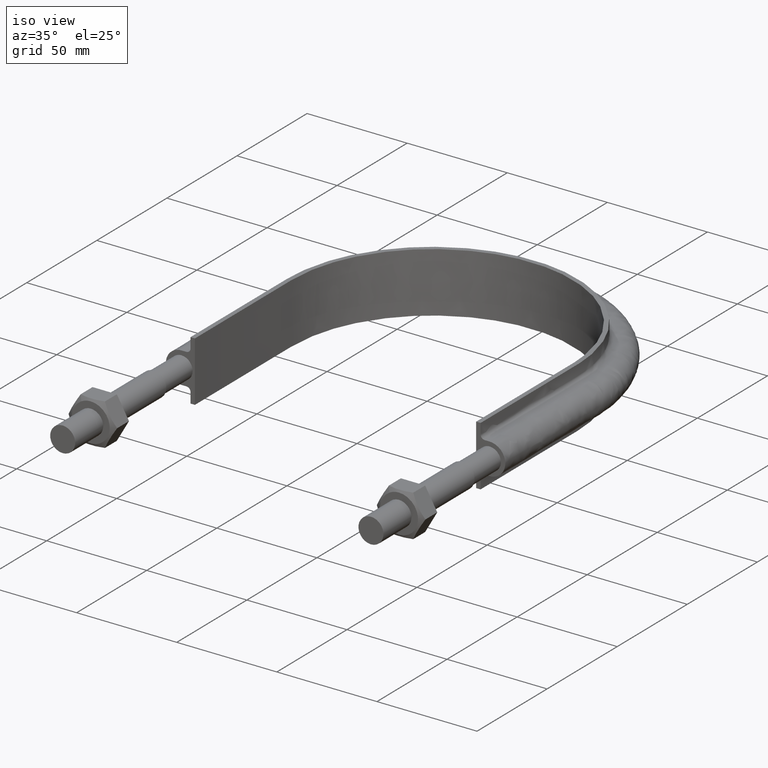
[diagram: clean part render]
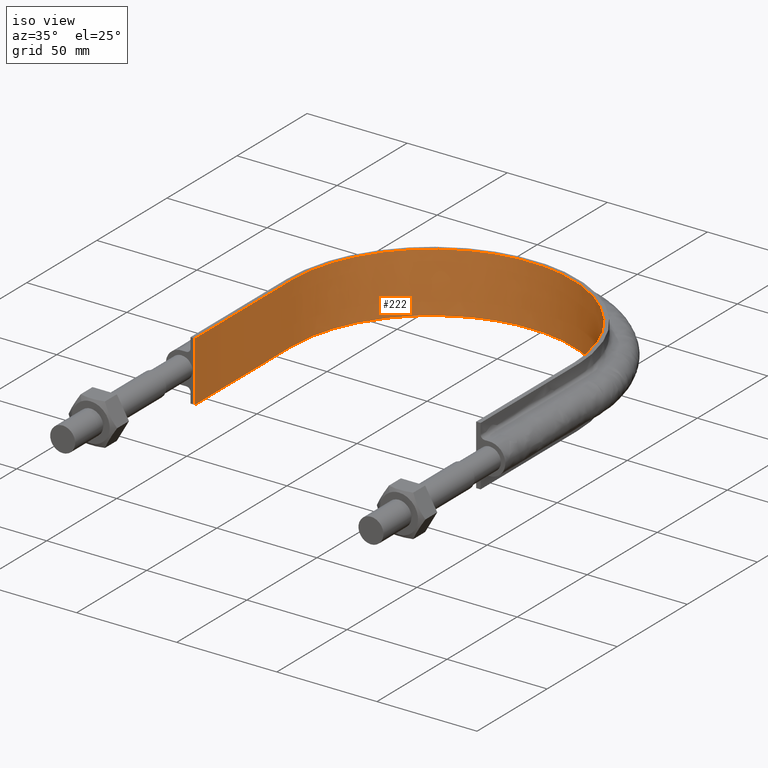
[diagram: same view with one face highlighted and labeled with its STEP entity id]
A machine part, iso view. The second image highlights one B-rep face of the part: STEP entity #222.
In plain terms, the highlighted face is a SurfaceOfExtrusion surface.
Its self-contained STEP definition (entity closure, byte-faithful):
#222 = ADVANCED_FACE( '', ( #268 ), #269, .T. );
#268 = FACE_OUTER_BOUND( '', #545, .T. );
#269 = SURFACE_OF_LINEAR_EXTRUSION( '', #546, #547 );
#545 = EDGE_LOOP( '', ( #1327, #1328, #1329, #1330 ) );
#546 = B_SPLINE_CURVE_WITH_KNOTS( '', 3, ( #1331, #1332, #1333, #1334, #1335, #1336, #1337, #1338, #1339, #1340, #1341, #1342, #1343, #1344, #1345, #1346 ), .UNSPECIFIED., .F., .F., ( 4, 3, 1, 1, 1, 1, 1, 1, 3, 4 ), ( -9.00000000000000, -8.00000000000000, -7.00000000000000, -6.00000000000000, -5.00000000000000, -4.00000000000000, -3.00000000000000, -2.00000000000000, -1.00000000000000, 0.000000000000000 ), .UNSPECIFIED. );
#547 = VECTOR( '', #1347, 1000.00000000000 );
#1327 = ORIENTED_EDGE( '', *, *, #1608, .F. );
#1328 = ORIENTED_EDGE( '', *, *, #1599, .F. );
#1329 = ORIENTED_EDGE( '', *, *, #1605, .T. );
#1330 = ORIENTED_EDGE( '', *, *, #1609, .T. );
#1331 = CARTESIAN_POINT( '', ( -70.2500000000000, 84.7100000000000, -237.081057040700 ) );
#1332 = CARTESIAN_POINT( '', ( -70.2500000000000, 107.726666666667, -237.081057040700 ) );
#1333 = CARTESIAN_POINT( '', ( -70.2500000000000, 130.743333333333, -237.081057040700 ) );
#1334 = CARTESIAN_POINT( '', ( -70.2500000000000, 153.760000000000, -237.081057040700 ) );
#1335 = CARTESIAN_POINT( '', ( -70.2500000000000, 164.249418134732, -237.081057040700 ) );
#1336 = CARTESIAN_POINT( '', ( -65.4537147955432, 185.288971927909, -237.081057040700 ) );
#1337 = CARTESIAN_POINT( '', ( -45.2953760364684, 210.556467088273, -237.081057040700 ) );
#1338 = CARTESIAN_POINT( '', ( -16.1657325420394, 224.587129579273, -237.081057040700 ) );
#1339 = CARTESIAN_POINT( '', ( 16.1657325420395, 224.587129579273, -237.081057040700 ) );
#1340 = CARTESIAN_POINT( '', ( 45.2953760364684, 210.556467088273, -237.081057040700 ) );
#1341 = CARTESIAN_POINT( '', ( 65.4537147955432, 185.288971927909, -237.081057040700 ) );
#1342 = CARTESIAN_POINT( '', ( 70.2500000000000, 164.249418134732, -237.081057040700 ) );
#1343 = CARTESIAN_POINT( '', ( 70.2500000000000, 153.760000000000, -237.081057040700 ) );
#1344 = CARTESIAN_POINT( '', ( 70.2500000000000, 130.743333333333, -237.081057040700 ) );
#1345 = CARTESIAN_POINT( '', ( 70.2500000000000, 107.726666666667, -237.081057040700 ) );
#1346 = CARTESIAN_POINT( '', ( 70.2500000000000, 84.7100000000000, -237.081057040700 ) );
#1347 = DIRECTION( '', ( 0.000000000000000, 0.000000000000000, 1.00000000000000 ) );
#1599 = EDGE_CURVE( '', #1681, #1682, #1683, .T. );
#1605 = EDGE_CURVE( '', #1681, #1693, #1694, .T. );
#1608 = EDGE_CURVE( '', #1682, #1698, #1699, .T. );
#1609 = EDGE_CURVE( '', #1693, #1698, #1700, .T. );
#1681 = VERTEX_POINT( '', #1829 );
#1682 = VERTEX_POINT( '', #1830 );
#1683 = LINE( '', #1831, #1832 );
#1693 = VERTEX_POINT( '', #1894 );
#1694 = B_SPLINE_CURVE_WITH_KNOTS( '', 3, ( #1895, #1896, #1897, #1898, #1899, #1900, #1901, #1902, #1903, #1904, #1905, #1906, #1907, #1908, #1909, #1910 ), .UNSPECIFIED., .F., .F., ( 4, 3, 1, 1, 1, 1, 1, 1, 3, 4 ), ( -9.00000000000000, -8.00000000000000, -7.00000000000000, -6.00000000000000, -5.00000000000000, -4.00000000000000, -3.00000000000000, -2.00000000000000, -1.00000000000000, 0.000000000000000 ), .UNSPECIFIED. );
#1698 = VERTEX_POINT( '', #1930 );
#1699 = B_SPLINE_CURVE_WITH_KNOTS( '', 3, ( #1931, #1932, #1933, #1934, #1935, #1936, #1937, #1938, #1939, #1940, #1941, #1942, #1943, #1944, #1945, #1946 ), .UNSPECIFIED., .F., .F., ( 4, 3, 1, 1, 1, 1, 1, 1, 3, 4 ), ( -9.00000000000000, -8.00000000000000, -7.00000000000000, -6.00000000000000, -5.00000000000000, -4.00000000000000, -3.00000000000000, -2.00000000000000, -1.00000000000000, 0.000000000000000 ), .UNSPECIFIED. );
#1700 = LINE( '', #1947, #1948 );
#1829 = CARTESIAN_POINT( '', ( -70.2500000000000, 84.7100000000000, -15.0000000000000 ) );
#1830 = CARTESIAN_POINT( '', ( -70.2500000000000, 84.7100000000000, 15.0000000000000 ) );
#1831 = CARTESIAN_POINT( '', ( -70.2500000000000, 84.7100000000000, -237.081057040700 ) );
#1832 = VECTOR( '', #2327, 1000.00000000000 );
#1894 = CARTESIAN_POINT( '', ( 70.2500000000000, 84.7100000000000, -15.0000000000000 ) );
#1895 = CARTESIAN_POINT( '', ( -70.2500000000000, 84.7100000000000, -15.0000000000000 ) );
#1896 = CARTESIAN_POINT( '', ( -70.2500000000000, 107.726666666667, -15.0000000000000 ) );
#1897 = CARTESIAN_POINT( '', ( -70.2500000000000, 130.743333333333, -15.0000000000000 ) );
#1898 = CARTESIAN_POINT( '', ( -70.2500000000000, 153.760000000000, -15.0000000000000 ) );
#1899 = CARTESIAN_POINT( '', ( -70.2500000000000, 164.249418134732, -15.0000000000000 ) );
#1900 = CARTESIAN_POINT( '', ( -65.4537147955432, 185.288971927909, -15.0000000000000 ) );
#1901 = CARTESIAN_POINT( '', ( -45.2953760364684, 210.556467088273, -15.0000000000000 ) );
#1902 = CARTESIAN_POINT( '', ( -16.1657325420394, 224.587129579273, -15.0000000000000 ) );
#1903 = CARTESIAN_POINT( '', ( 16.1657325420395, 224.587129579273, -15.0000000000000 ) );
#1904 = CARTESIAN_POINT( '', ( 45.2953760364684, 210.556467088273, -15.0000000000000 ) );
#1905 = CARTESIAN_POINT( '', ( 65.4537147955432, 185.288971927909, -15.0000000000000 ) );
#1906 = CARTESIAN_POINT( '', ( 70.2500000000000, 164.249418134732, -15.0000000000000 ) );
#1907 = CARTESIAN_POINT( '', ( 70.2500000000000, 153.760000000000, -15.0000000000000 ) );
#1908 = CARTESIAN_POINT( '', ( 70.2500000000000, 130.743333333333, -15.0000000000000 ) );
#1909 = CARTESIAN_POINT( '', ( 70.2500000000000, 107.726666666667, -15.0000000000000 ) );
#1910 = CARTESIAN_POINT( '', ( 70.2500000000000, 84.7100000000000, -15.0000000000000 ) );
#1930 = CARTESIAN_POINT( '', ( 70.2500000000000, 84.7100000000000, 15.0000000000000 ) );
#1931 = CARTESIAN_POINT( '', ( -70.2500000000000, 84.7100000000000, 15.0000000000000 ) );
#1932 = CARTESIAN_POINT( '', ( -70.2500000000000, 107.726666666667, 15.0000000000000 ) );
#1933 = CARTESIAN_POINT( '', ( -70.2500000000000, 130.743333333333, 15.0000000000000 ) );
#1934 = CARTESIAN_POINT( '', ( -70.2500000000000, 153.760000000000, 15.0000000000000 ) );
#1935 = CARTESIAN_POINT( '', ( -70.2500000000000, 164.249418134732, 15.0000000000000 ) );
#1936 = CARTESIAN_POINT( '', ( -65.4537147955432, 185.288971927909, 15.0000000000000 ) );
#1937 = CARTESIAN_POINT( '', ( -45.2953760364684, 210.556467088273, 15.0000000000000 ) );
#1938 = CARTESIAN_POINT( '', ( -16.1657325420394, 224.587129579273, 15.0000000000000 ) );
#1939 = CARTESIAN_POINT( '', ( 16.1657325420395, 224.587129579273, 15.0000000000000 ) );
#1940 = CARTESIAN_POINT( '', ( 45.2953760364684, 210.556467088273, 15.0000000000000 ) );
#1941 = CARTESIAN_POINT( '', ( 65.4537147955432, 185.288971927909, 15.0000000000000 ) );
#1942 = CARTESIAN_POINT( '', ( 70.2500000000000, 164.249418134732, 15.0000000000000 ) );
#1943 = CARTESIAN_POINT( '', ( 70.2500000000000, 153.760000000000, 15.0000000000000 ) );
#1944 = CARTESIAN_POINT( '', ( 70.2500000000000, 130.743333333333, 15.0000000000000 ) );
#1945 = CARTESIAN_POINT( '', ( 70.2500000000000, 107.726666666667, 15.0000000000000 ) );
#1946 = CARTESIAN_POINT( '', ( 70.2500000000000, 84.7100000000000, 15.0000000000000 ) );
#1947 = CARTESIAN_POINT( '', ( 70.2500000000000, 84.7100000000000, -237.081057040700 ) );
#1948 = VECTOR( '', #2331, 1000.00000000000 );
#2327 = DIRECTION( '', ( 0.000000000000000, 0.000000000000000, 1.00000000000000 ) );
#2331 = DIRECTION( '', ( 0.000000000000000, 0.000000000000000, 1.00000000000000 ) );